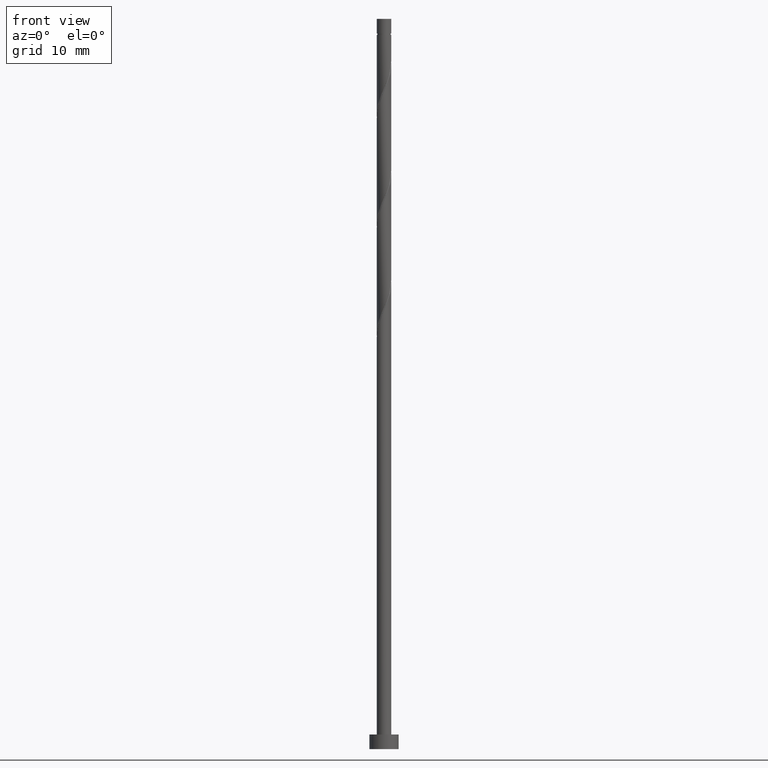
[diagram: clean part render]
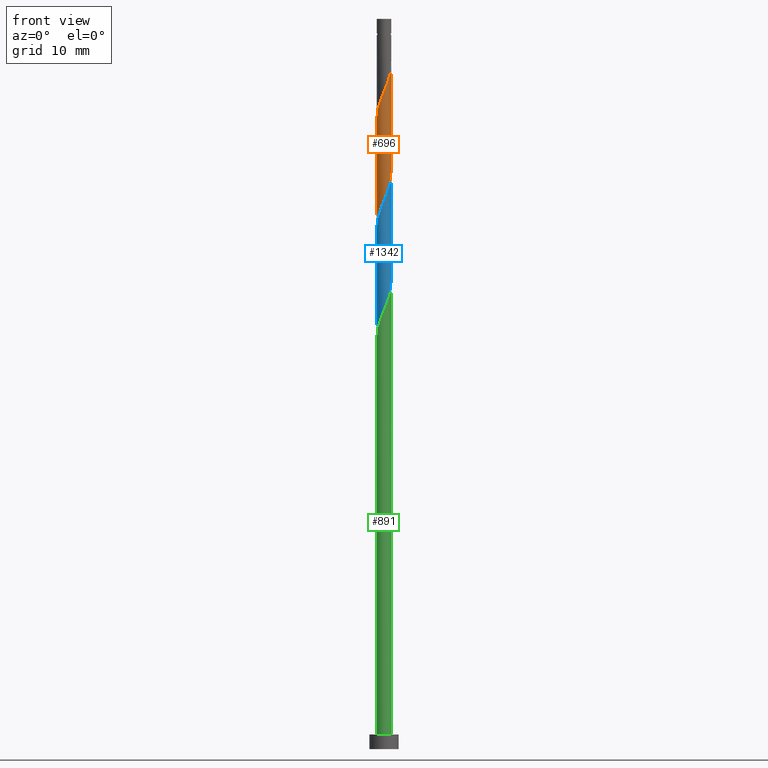
[diagram: same view with three faces highlighted in distinct colors, each labeled with its STEP entity id]
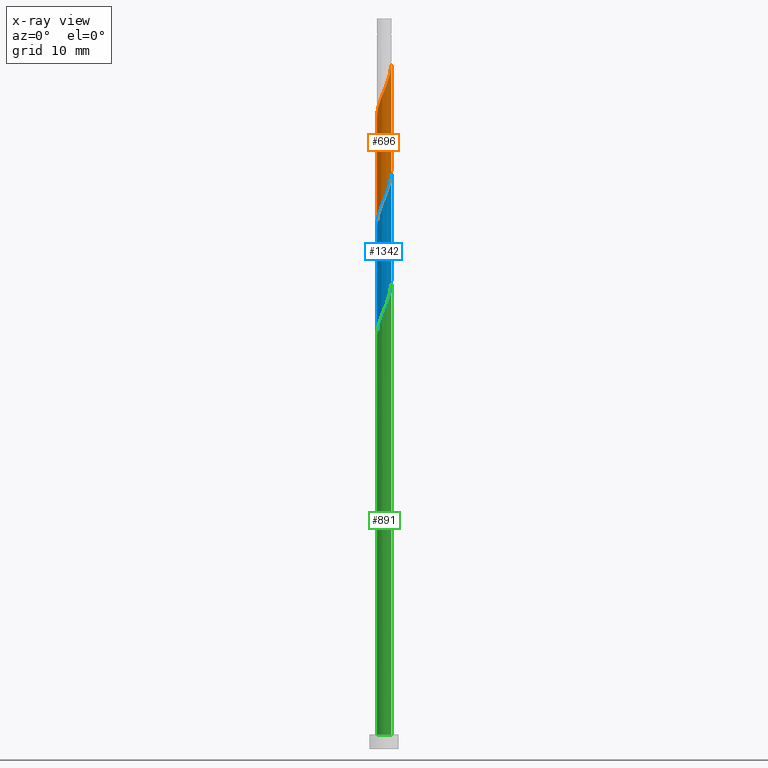
[diagram: x-ray of the same camera — body ghosted, the three highlighted faces saturated]
A machine part, front view with three faces highlighted in distinct colors.
The next image is the same camera in x-ray (body ghosted, the three faces saturated) — at least one of them is partly hidden behind the body in this view.
Their STEP definitions:

[orange] entity #696 — the highlighted cylindrical surface (edge-blend (fillet) strip) has radius 1 mm, axis along (-0, -0, -1).
#40 = CARTESIAN_POINT ( 'NONE',  ( -0.4173462071991567157, -0.9256961420802413132, 89.04999999999999716 ) ) ;
#53 = CARTESIAN_POINT ( 'NONE',  ( -0.09987492177719106690, -0.9949999999999999956, 75.30000000000002558 ) ) ;
#61 = CARTESIAN_POINT ( 'NONE',  ( -1.000000000000000000, -8.581936326203144864E-17, 86.31035135352635734 ) ) ;
#70 = CARTESIAN_POINT ( 'NONE',  ( -1.000000000000000000, -2.603187352281614199E-15, 71.78964864647365118 ) ) ;
#71 = EDGE_CURVE ( 'NONE', #901, #251, #1340, .T. ) ;
#74 = CARTESIAN_POINT ( 'NONE',  ( -0.7160823004724664598, -0.6980158586665924370, 73.63333333333332575 ) ) ;
#97 = CARTESIAN_POINT ( 'NONE',  ( -1.000000000000000000, -2.603187352281614199E-15, 71.78964864647365118 ) ) ;
#101 = LINE ( 'NONE', #738, #1165 ) ;
#163 = EDGE_CURVE ( 'NONE', #623, #705, #1440, .T. ) ;
#168 = CARTESIAN_POINT ( 'NONE',  ( 0.2464583156134441955, -0.9691533927428537254, 76.13333333333332575 ) ) ;
#185 = CARTESIAN_POINT ( 'NONE',  ( 0.8117578158769208629, -0.5839942194600313830, 77.80000000000002558 ) ) ;
#248 = CYLINDRICAL_SURFACE ( 'NONE', #1308, 1.000000000000000000 ) ;
#251 = VERTEX_POINT ( 'NONE', #70 ) ;
#273 = FACE_OUTER_BOUND ( 'NONE', #975, .T. ) ;
#295 = CARTESIAN_POINT ( 'NONE',  ( 0.2753202675821132539, -0.9773893565945339645, 90.71666666666666856 ) ) ;
#301 = CARTESIAN_POINT ( 'NONE',  ( 0.9116327376541116800, -0.4110057805399693898, 92.80000000000001137 ) ) ;
#335 = CARTESIAN_POINT ( 'NONE',  ( -0.8117578158769209740, -0.5839942194600308278, 87.80000000000001137 ) ) ;
#394 = CARTESIAN_POINT ( 'NONE',  ( 0.9147317533455048277, -0.4408594147199561553, 78.21666666666665435 ) ) ;
#436 = CARTESIAN_POINT ( 'NONE',  ( 1.000000000000000222, -4.290968163101563064E-16, 79.28964864647366539 ) ) ;
#482 = CARTESIAN_POINT ( 'NONE',  ( -0.07557042402773206380, -1.012610643405466249, 89.88333333333333997 ) ) ;
#512 = DIRECTION ( 'NONE',  ( -1.000000000000000000, 0.000000000000000000, 0.000000000000000000 ) ) ;
#516 = ORIENTED_EDGE ( 'NONE', *, *, #984, .T. ) ;
#527 = LINE ( 'NONE', #889, #586 ) ;
#532 = CARTESIAN_POINT ( 'NONE',  ( -0.8391613293177733190, -0.5717512286855107595, 73.21666666666664014 ) ) ;
#553 = CARTESIAN_POINT ( 'NONE',  ( -0.9625406160859104610, -0.2711375340762611774, 86.96666666666666856 ) ) ;
#581 = CARTESIAN_POINT ( 'NONE',  ( 1.000000000000000222, -0.03726283816066728455, 93.72138669025336810 ) ) ;
#586 = VECTOR ( 'NONE', #988, 1000.000000000000000 ) ;
#623 = VERTEX_POINT ( 'NONE', #61 ) ;
#645 = CARTESIAN_POINT ( 'NONE',  ( 0.5630650428037468069, -0.8264125831401737399, 76.96666666666666856 ) ) ;
#654 = CARTESIAN_POINT ( 'NONE',  ( -0.9972268124083832896, -0.07442233948093023022, 71.96666666666668277 ) ) ;
#661 = ORIENTED_EDGE ( 'NONE', *, *, #71, .F. ) ;
#696 = ADVANCED_FACE ( 'NONE', ( #273 ), #248, .T. ) ;
#699 = CARTESIAN_POINT ( 'NONE',  ( 0.000000000000000000, 0.000000000000000000, 100.0000000000000000 ) ) ;
#703 = CARTESIAN_POINT ( 'NONE',  ( 0.9972268124083832896, -0.07442233948093021634, 93.63333333333335418 ) ) ;
#705 = VERTEX_POINT ( 'NONE', #1134 ) ;
#706 = CARTESIAN_POINT ( 'NONE',  ( 1.000000000000000222, -4.290968163101563064E-16, 79.28964864647366539 ) ) ;
#738 = CARTESIAN_POINT ( 'NONE',  ( -1.000000000000000000, 0.000000000000000000, 100.0000000000000000 ) ) ;
#753 = CARTESIAN_POINT ( 'NONE',  ( 0.9841041459904503741, -0.2502603323944278535, 93.21666666666666856 ) ) ;
#755 = DIRECTION ( 'NONE',  ( -0.000000000000000000, -0.000000000000000000, -1.000000000000000000 ) ) ;
#866 = CARTESIAN_POINT ( 'NONE',  ( 0.7160823004724661267, -0.6980158586665925480, 91.96666666666669698 ) ) ;
#883 = CARTESIAN_POINT ( 'NONE',  ( -0.2753202675821139200, -0.9773893565945336315, 74.88333333333332575 ) ) ;
#889 = CARTESIAN_POINT ( 'NONE',  ( 1.000000000000000000, 1.224646799147353207E-16, 100.0000000000000000 ) ) ;
#901 = VERTEX_POINT ( 'NONE', #436 ) ;
#975 = EDGE_LOOP ( 'NONE', ( #1400, #1247, #516, #661 ) ) ;
#976 = CARTESIAN_POINT ( 'NONE',  ( -0.5930032716271594895, -0.8242804886476744475, 74.05000000000001137 ) ) ;
#979 = CARTESIAN_POINT ( 'NONE',  ( 0.4341617696046363717, -0.9008349226211040950, 91.13333333333332575 ) ) ;
#984 = EDGE_CURVE ( 'NONE', #623, #251, #101, .T. ) ;
#988 = DIRECTION ( 'NONE',  ( -0.000000000000000000, -0.000000000000000000, -1.000000000000000000 ) ) ;
#989 = CARTESIAN_POINT ( 'NONE',  ( 0.7087838784083367871, -0.7271290242001067217, 77.38333333333332575 ) ) ;
#998 = CARTESIAN_POINT ( 'NONE',  ( -0.9116327376541120131, -0.4110057805399687791, 72.80000000000002558 ) ) ;
#1014 = CARTESIAN_POINT ( 'NONE',  ( -1.000000000000000444, -0.1381563937346758919, 86.64019839831189529 ) ) ;
#1024 = CARTESIAN_POINT ( 'NONE',  ( -0.9147317533455049388, -0.4408594147199554891, 87.38333333333331154 ) ) ;
#1043 = CARTESIAN_POINT ( 'NONE',  ( 1.000000000000000000, 7.866774965686214893E-17, 93.81035135352635734 ) ) ;
#1085 = CARTESIAN_POINT ( 'NONE',  ( 0.5930032716271590454, -0.8242804886476744475, 91.54999999999999716 ) ) ;
#1095 = CARTESIAN_POINT ( 'NONE',  ( 0.4173462071991564382, -0.9256961420802414242, 76.54999999999999716 ) ) ;
#1104 = DIRECTION ( 'NONE',  ( -0.000000000000000000, -0.000000000000000000, -1.000000000000000000 ) ) ;
#1106 = CARTESIAN_POINT ( 'NONE',  ( 0.07557042402773136991, -1.012610643405466471, 75.71666666666666856 ) ) ;
#1128 = CARTESIAN_POINT ( 'NONE',  ( -1.000000000000000000, -8.581936326203144864E-17, 86.31035135352635734 ) ) ;
#1134 = CARTESIAN_POINT ( 'NONE',  ( 1.000000000000000000, 7.866774965686214893E-17, 93.81035135352635734 ) ) ;
#1165 = VECTOR ( 'NONE', #1104, 1000.000000000000000 ) ;
#1166 = CARTESIAN_POINT ( 'NONE',  ( 1.000000000000000888, -0.1381563937346747262, 78.95980160168809903 ) ) ;
#1197 = CARTESIAN_POINT ( 'NONE',  ( 0.09987492177719080322, -0.9949999999999999956, 90.29999999999999716 ) ) ;
#1206 = CARTESIAN_POINT ( 'NONE',  ( -0.2464583156134444175, -0.9691533927428536144, 89.46666666666669698 ) ) ;
#1212 = CARTESIAN_POINT ( 'NONE',  ( 0.9625406160859105720, -0.2711375340762611219, 78.63333333333331154 ) ) ;
#1225 = CARTESIAN_POINT ( 'NONE',  ( -0.4341617696046366492, -0.9008349226211040950, 74.46666666666665435 ) ) ;
#1230 = CARTESIAN_POINT ( 'NONE',  ( -0.9841041459904508182, -0.2502603323944273539, 72.38333333333333997 ) ) ;
#1247 = ORIENTED_EDGE ( 'NONE', *, *, #163, .F. ) ;
#1254 = CARTESIAN_POINT ( 'NONE',  ( -0.7087838784083370092, -0.7271290242001063886, 88.21666666666666856 ) ) ;
#1278 = CARTESIAN_POINT ( 'NONE',  ( -0.5630650428037469180, -0.8264125831401736288, 88.63333333333335418 ) ) ;
#1308 = AXIS2_PLACEMENT_3D ( 'NONE', #699, #755, #512 ) ;
#1326 = CARTESIAN_POINT ( 'NONE',  ( 0.8391613293177730970, -0.5717512286855108705, 92.38333333333331154 ) ) ;
#1340 =( BOUNDED_CURVE ( )  B_SPLINE_CURVE ( 2, ( #706, #1166, #1212, #394, #185, #989, #645, #1095, #168, #1106, #53, #883, #1225, #976, #74, #532, #998, #1230, #654, #1476, #97 ),
 .UNSPECIFIED., .F., .T. ) 
 B_SPLINE_CURVE_WITH_KNOTS ( ( 3, 2, 2, 2, 2, 2, 2, 2, 2, 2, 3 ),
 ( 0.5585262615578963086, 0.5694444444444444198, 0.5833333333333333703, 0.5972222222222222099, 0.6111111111111111605, 0.6250000000000000000, 0.6388888888888888395, 0.6527777777777777901, 0.6666666666666666297, 0.6805555555555555802, 0.6835262615578967527 ),
 .UNSPECIFIED. ) 
 CURVE ( )  GEOMETRIC_REPRESENTATION_ITEM ( )  RATIONAL_B_SPLINE_CURVE ( ( 0.9475153373969255055, 0.9410068908218450767, 0.9523809523809528832, 0.9379121457259129713, 0.9523809523809528832, 0.9379121457259129713, 0.9523809523809528832, 0.9379121457259129713, 0.9523809523809528832, 0.9379121457259129713, 0.9523809523809528832, 0.9379121457259129713, 0.9523809523809528832, 0.9379121457259129713, 0.9523809523809528832, 0.9379121457259129713, 0.9523809523809528832, 0.9379121457259129713, 0.9523809523809528832, 0.9492862072850202226, 0.9475153373969248394 ) ) 
 REPRESENTATION_ITEM ( '' )  );
#1400 = ORIENTED_EDGE ( 'NONE', *, *, #1425, .F. ) ;
#1425 = EDGE_CURVE ( 'NONE', #705, #901, #527, .T. ) ;
#1440 =( BOUNDED_CURVE ( )  B_SPLINE_CURVE ( 2, ( #1128, #1014, #553, #1024, #335, #1254, #1278, #40, #1206, #482, #1197, #295, #979, #1085, #866, #1326, #301, #753, #703, #581, #1043 ),
 .UNSPECIFIED., .F., .T. ) 
 B_SPLINE_CURVE_WITH_KNOTS ( ( 3, 2, 2, 2, 2, 2, 2, 2, 2, 2, 3 ),
 ( 0.5585262615578964196, 0.5694444444444444198, 0.5833333333333332593, 0.5972222222222222099, 0.6111111111111111605, 0.6250000000000000000, 0.6388888888888888395, 0.6527777777777777901, 0.6666666666666667407, 0.6805555555555555802, 0.6835262615578969747 ),
 .UNSPECIFIED. ) 
 CURVE ( )  GEOMETRIC_REPRESENTATION_ITEM ( )  RATIONAL_B_SPLINE_CURVE ( ( 0.9475153373969233961, 0.9410068908218433004, 0.9523809523809509958, 0.9379121457259110839, 0.9523809523809509958, 0.9379121457259110839, 0.9523809523809509958, 0.9379121457259110839, 0.9523809523809509958, 0.9379121457259110839, 0.9523809523809509958, 0.9379121457259110839, 0.9523809523809509958, 0.9379121457259110839, 0.9523809523809509958, 0.9379121457259110839, 0.9523809523809509958, 0.9379121457259110839, 0.9523809523809509958, 0.9492862072850182242, 0.9475153373969227300 ) ) 
 REPRESENTATION_ITEM ( '' )  );
#1476 = CARTESIAN_POINT ( 'NONE',  ( -1.000000000000000444, -0.03726283816067003929, 71.87861330974669727 ) ) ;

[blue] entity #1342 — the highlighted cylindrical surface (edge-blend (fillet) strip) has radius 1 mm, axis along (-0, -0, -1).
#31 = CARTESIAN_POINT ( 'NONE',  ( 0.09987492177719080322, -0.9949999999999999956, 75.30000000000003979 ) ) ;
#32 = ORIENTED_EDGE ( 'NONE', *, *, #1301, .F. ) ;
#88 = VERTEX_POINT ( 'NONE', #462 ) ;
#116 = ORIENTED_EDGE ( 'NONE', *, *, #187, .F. ) ;
#166 = CARTESIAN_POINT ( 'NONE',  ( -0.8117578158769209740, -0.5839942194600308278, 72.80000000000002558 ) ) ;
#172 = CARTESIAN_POINT ( 'NONE',  ( 0.000000000000000000, 0.000000000000000000, 100.0000000000000000 ) ) ;
#187 = EDGE_CURVE ( 'NONE', #88, #1143, #1083, .T. ) ;
#203 = CARTESIAN_POINT ( 'NONE',  ( 0.9147317533455048277, -0.4408594147199561553, 63.21666666666667567 ) ) ;
#211 =( BOUNDED_CURVE ( )  B_SPLINE_CURVE ( 2, ( #1210, #507, #981, #515, #166, #1329, #622, #305, #1218, #733, #31, #1087, #496, #953, #1322, #392, #1408, #845, #1414, #1429, #1299 ),
 .UNSPECIFIED., .F., .T. ) 
 B_SPLINE_CURVE_WITH_KNOTS ( ( 3, 2, 2, 2, 2, 2, 2, 2, 2, 2, 3 ),
 ( 0.3085262615578962531, 0.3194444444444444198, 0.3333333333333333703, 0.3472222222222222099, 0.3611111111111111605, 0.3750000000000000000, 0.3888888888888888395, 0.4027777777777777901, 0.4166666666666666297, 0.4305555555555555802, 0.4335262615578967527 ),
 .UNSPECIFIED. ) 
 CURVE ( )  GEOMETRIC_REPRESENTATION_ITEM ( )  RATIONAL_B_SPLINE_CURVE ( ( 0.9475153373969236181, 0.9410068908218430783, 0.9523809523809509958, 0.9379121457259110839, 0.9523809523809509958, 0.9379121457259110839, 0.9523809523809509958, 0.9379121457259110839, 0.9523809523809509958, 0.9379121457259110839, 0.9523809523809509958, 0.9379121457259110839, 0.9523809523809509958, 0.9379121457259110839, 0.9523809523809509958, 0.9379121457259110839, 0.9523809523809509958, 0.9379121457259110839, 0.9523809523809509958, 0.9492862072850184463, 0.9475153373969230630 ) ) 
 REPRESENTATION_ITEM ( '' )  );
#221 = CARTESIAN_POINT ( 'NONE',  ( 0.07557042402773136991, -1.012610643405466471, 60.71666666666666146 ) ) ;
#237 = CARTESIAN_POINT ( 'NONE',  ( 0.8117578158769208629, -0.5839942194600313830, 62.79999999999999716 ) ) ;
#261 = CARTESIAN_POINT ( 'NONE',  ( 0.9999999999999995559, -0.1381563937346788618, 63.95980160168808482 ) ) ;
#305 = CARTESIAN_POINT ( 'NONE',  ( -0.4173462071991567157, -0.9256961420802413132, 74.05000000000002558 ) ) ;
#333 = CARTESIAN_POINT ( 'NONE',  ( 1.000000000000000000, 1.224646799147353207E-16, 100.0000000000000000 ) ) ;
#348 = CARTESIAN_POINT ( 'NONE',  ( -0.9972268124083832896, -0.07442233948093023022, 56.96666666666666856 ) ) ;
#362 = CARTESIAN_POINT ( 'NONE',  ( 1.000000000000000222, -4.290968163101563064E-16, 64.28964864647365118 ) ) ;
#390 = AXIS2_PLACEMENT_3D ( 'NONE', #172, #1184, #1071 ) ;
#392 = CARTESIAN_POINT ( 'NONE',  ( 0.8391613293177730970, -0.5717512286855108705, 77.38333333333333997 ) ) ;
#422 = CARTESIAN_POINT ( 'NONE',  ( -0.09987492177719106690, -0.9949999999999999956, 60.30000000000000426 ) ) ;
#454 = LINE ( 'NONE', #912, #756 ) ;
#462 = CARTESIAN_POINT ( 'NONE',  ( 1.000000000000000222, -4.290968163101563064E-16, 64.28964864647365118 ) ) ;
#496 = CARTESIAN_POINT ( 'NONE',  ( 0.4341617696046363717, -0.9008349226211040950, 76.13333333333333997 ) ) ;
#507 = CARTESIAN_POINT ( 'NONE',  ( -1.000000000000000888, -0.1381563937346738657, 71.64019839831189529 ) ) ;
#515 = CARTESIAN_POINT ( 'NONE',  ( -0.9147317533455049388, -0.4408594147199554891, 72.38333333333331154 ) ) ;
#541 = CARTESIAN_POINT ( 'NONE',  ( -1.000000000000000222, 1.930935673395703650E-16, 56.78964864647364408 ) ) ;
#549 = CARTESIAN_POINT ( 'NONE',  ( 0.5630650428037468069, -0.8264125831401737399, 61.96666666666666856 ) ) ;
#560 = CARTESIAN_POINT ( 'NONE',  ( -0.7160823004724664598, -0.6980158586665924370, 58.63333333333332575 ) ) ;
#566 = ORIENTED_EDGE ( 'NONE', *, *, #1405, .F. ) ;
#568 = CARTESIAN_POINT ( 'NONE',  ( 0.7087838784083367871, -0.7271290242001067217, 62.38333333333332575 ) ) ;
#608 = CYLINDRICAL_SURFACE ( 'NONE', #390, 1.000000000000000000 ) ;
#615 = CARTESIAN_POINT ( 'NONE',  ( -1.000000000000000000, -8.581936326203144864E-17, 71.31035135352634313 ) ) ;
#622 = CARTESIAN_POINT ( 'NONE',  ( -0.5630650428037469180, -0.8264125831401736288, 73.63333333333332575 ) ) ;
#665 = CARTESIAN_POINT ( 'NONE',  ( 0.4173462071991564382, -0.9256961420802414242, 61.54999999999999716 ) ) ;
#676 = CARTESIAN_POINT ( 'NONE',  ( 1.000000000000000000, 7.866774965686214893E-17, 78.81035135352634313 ) ) ;
#721 = ORIENTED_EDGE ( 'NONE', *, *, #1159, .T. ) ;
#733 = CARTESIAN_POINT ( 'NONE',  ( -0.07557042402773206380, -1.012610643405466249, 74.88333333333333997 ) ) ;
#748 = FACE_OUTER_BOUND ( 'NONE', #908, .T. ) ;
#756 = VECTOR ( 'NONE', #1253, 1000.000000000000000 ) ;
#796 = CARTESIAN_POINT ( 'NONE',  ( -0.5930032716271594895, -0.8242804886476744475, 59.04999999999999005 ) ) ;
#807 = CARTESIAN_POINT ( 'NONE',  ( -1.000000000000000444, -0.03726283816067003929, 56.87861330974668306 ) ) ;
#845 = CARTESIAN_POINT ( 'NONE',  ( 0.9841041459904503741, -0.2502603323944278535, 78.21666666666668277 ) ) ;
#893 = CARTESIAN_POINT ( 'NONE',  ( -0.2753202675821139200, -0.9773893565945336315, 59.88333333333334707 ) ) ;
#908 = EDGE_LOOP ( 'NONE', ( #566, #32, #721, #116 ) ) ;
#912 = CARTESIAN_POINT ( 'NONE',  ( -1.000000000000000000, 0.000000000000000000, 100.0000000000000000 ) ) ;
#915 = CARTESIAN_POINT ( 'NONE',  ( -0.8391613293177733190, -0.5717512286855107595, 58.21666666666667567 ) ) ;
#953 = CARTESIAN_POINT ( 'NONE',  ( 0.5930032716271590454, -0.8242804886476744475, 76.55000000000001137 ) ) ;
#971 = VECTOR ( 'NONE', #1114, 1000.000000000000000 ) ;
#981 = CARTESIAN_POINT ( 'NONE',  ( -0.9625406160859104610, -0.2711375340762611774, 71.96666666666669698 ) ) ;
#1008 = CARTESIAN_POINT ( 'NONE',  ( 0.9625406160859105720, -0.2711375340762611219, 63.63333333333333286 ) ) ;
#1071 = DIRECTION ( 'NONE',  ( -1.000000000000000000, 0.000000000000000000, 0.000000000000000000 ) ) ;
#1083 =( BOUNDED_CURVE ( )  B_SPLINE_CURVE ( 2, ( #362, #261, #1008, #203, #237, #568, #549, #665, #1450, #221, #422, #893, #1257, #796, #560, #915, #1233, #1121, #348, #807, #541 ),
 .UNSPECIFIED., .F., .T. ) 
 B_SPLINE_CURVE_WITH_KNOTS ( ( 3, 2, 2, 2, 2, 2, 2, 2, 2, 2, 3 ),
 ( 0.8085262615578966416, 0.8194444444444444198, 0.8333333333333333703, 0.8472222222222222099, 0.8611111111111111605, 0.8750000000000000000, 0.8888888888888888395, 0.9027777777777777901, 0.9166666666666666297, 0.9305555555555555802, 0.9335262615578967527 ),
 .UNSPECIFIED. ) 
 CURVE ( )  GEOMETRIC_REPRESENTATION_ITEM ( )  RATIONAL_B_SPLINE_CURVE ( ( 0.9475153373969250614, 0.9410068908218454098, 0.9523809523809528832, 0.9379121457259129713, 0.9523809523809528832, 0.9379121457259129713, 0.9523809523809528832, 0.9379121457259129713, 0.9523809523809528832, 0.9379121457259129713, 0.9523809523809528832, 0.9379121457259129713, 0.9523809523809528832, 0.9379121457259129713, 0.9523809523809528832, 0.9379121457259129713, 0.9523809523809528832, 0.9379121457259129713, 0.9523809523809528832, 0.9492862072850202226, 0.9475153373969248394 ) ) 
 REPRESENTATION_ITEM ( '' )  );
#1087 = CARTESIAN_POINT ( 'NONE',  ( 0.2753202675821132539, -0.9773893565945339645, 75.71666666666664014 ) ) ;
#1114 = DIRECTION ( 'NONE',  ( -0.000000000000000000, -0.000000000000000000, -1.000000000000000000 ) ) ;
#1121 = CARTESIAN_POINT ( 'NONE',  ( -0.9841041459904508182, -0.2502603323944273539, 57.38333333333332575 ) ) ;
#1141 = CARTESIAN_POINT ( 'NONE',  ( -1.000000000000000222, 1.930935673395703404E-16, 56.78964864647364408 ) ) ;
#1143 = VERTEX_POINT ( 'NONE', #1141 ) ;
#1159 = EDGE_CURVE ( 'NONE', #1362, #1143, #454, .T. ) ;
#1164 = VERTEX_POINT ( 'NONE', #676 ) ;
#1184 = DIRECTION ( 'NONE',  ( -0.000000000000000000, -0.000000000000000000, -1.000000000000000000 ) ) ;
#1210 = CARTESIAN_POINT ( 'NONE',  ( -1.000000000000000000, -8.581936326203146096E-17, 71.31035135352634313 ) ) ;
#1218 = CARTESIAN_POINT ( 'NONE',  ( -0.2464583156134444175, -0.9691533927428536144, 74.46666666666666856 ) ) ;
#1233 = CARTESIAN_POINT ( 'NONE',  ( -0.9116327376541120131, -0.4110057805399687791, 57.80000000000000426 ) ) ;
#1253 = DIRECTION ( 'NONE',  ( -0.000000000000000000, -0.000000000000000000, -1.000000000000000000 ) ) ;
#1257 = CARTESIAN_POINT ( 'NONE',  ( -0.4341617696046366492, -0.9008349226211040950, 59.46666666666667567 ) ) ;
#1299 = CARTESIAN_POINT ( 'NONE',  ( 1.000000000000000000, 7.866774965686214893E-17, 78.81035135352634313 ) ) ;
#1301 = EDGE_CURVE ( 'NONE', #1362, #1164, #211, .T. ) ;
#1322 = CARTESIAN_POINT ( 'NONE',  ( 0.7160823004724661267, -0.6980158586665925480, 76.96666666666669698 ) ) ;
#1329 = CARTESIAN_POINT ( 'NONE',  ( -0.7087838784083370092, -0.7271290242001063886, 73.21666666666666856 ) ) ;
#1342 = ADVANCED_FACE ( 'NONE', ( #748 ), #608, .T. ) ;
#1362 = VERTEX_POINT ( 'NONE', #615 ) ;
#1405 = EDGE_CURVE ( 'NONE', #1164, #88, #1461, .T. ) ;
#1408 = CARTESIAN_POINT ( 'NONE',  ( 0.9116327376541116800, -0.4110057805399693898, 77.80000000000001137 ) ) ;
#1414 = CARTESIAN_POINT ( 'NONE',  ( 0.9972268124083832896, -0.07442233948093021634, 78.63333333333332575 ) ) ;
#1429 = CARTESIAN_POINT ( 'NONE',  ( 0.9999999999999997780, -0.03726283816067007398, 78.72138669025329705 ) ) ;
#1450 = CARTESIAN_POINT ( 'NONE',  ( 0.2464583156134441955, -0.9691533927428537254, 61.13333333333333997 ) ) ;
#1461 = LINE ( 'NONE', #333, #971 ) ;

[green] entity #891 — the highlighted cylindrical surface (edge-blend (fillet) strip) has radius 1 mm, axis along (-0, -0, -1).
#17 = CARTESIAN_POINT ( 'NONE',  ( 0.9116327376541116800, -0.4110057805399693898, 62.79999999999999716 ) ) ;
#23 = CARTESIAN_POINT ( 'NONE',  ( 0.4341617696046363717, -0.9008349226211040950, 61.13333333333334707 ) ) ;
#52 = CARTESIAN_POINT ( 'NONE',  ( -0.9625406160859104610, -0.2711375340762611774, 56.96666666666668277 ) ) ;
#58 = CARTESIAN_POINT ( 'NONE',  ( 0.2753202675821132539, -0.9773893565945339645, 60.71666666666666856 ) ) ;
#62 = CARTESIAN_POINT ( 'NONE',  ( -0.2464583156134444175, -0.9691533927428536144, 59.46666666666667567 ) ) ;
#78 = DIRECTION ( 'NONE',  ( -0.000000000000000000, -0.000000000000000000, -1.000000000000000000 ) ) ;
#83 = FACE_OUTER_BOUND ( 'NONE', #220, .T. ) ;
#95 = LINE ( 'NONE', #826, #254 ) ;
#102 = CIRCLE ( 'NONE', #871, 1.000000000000000000 ) ;
#164 = CARTESIAN_POINT ( 'NONE',  ( 1.000000000000000000, 7.866774965686214893E-17, 63.81035135352636445 ) ) ;
#177 = DIRECTION ( 'NONE',  ( 1.000000000000000000, 0.000000000000000000, 0.000000000000000000 ) ) ;
#184 = CARTESIAN_POINT ( 'NONE',  ( 0.000000000000000000, 0.000000000000000000, 100.0000000000000000 ) ) ;
#193 = CARTESIAN_POINT ( 'NONE',  ( -0.07557042402773206380, -1.012610643405466249, 59.88333333333335418 ) ) ;
#196 = CARTESIAN_POINT ( 'NONE',  ( -1.000000000000000000, 0.000000000000000000, 100.0000000000000000 ) ) ;
#220 = EDGE_LOOP ( 'NONE', ( #484, #283, #489, #591 ) ) ;
#254 = VECTOR ( 'NONE', #1160, 1000.000000000000000 ) ;
#276 = VERTEX_POINT ( 'NONE', #164 ) ;
#283 = ORIENTED_EDGE ( 'NONE', *, *, #604, .F. ) ;
#298 = CARTESIAN_POINT ( 'NONE',  ( -0.8117578158769209740, -0.5839942194600308278, 57.80000000000000426 ) ) ;
#330 = VERTEX_POINT ( 'NONE', #1123 ) ;
#339 = VERTEX_POINT ( 'NONE', #543 ) ;
#340 = DIRECTION ( 'NONE',  ( -1.000000000000000000, 0.000000000000000000, 0.000000000000000000 ) ) ;
#365 = CARTESIAN_POINT ( 'NONE',  ( 0.5930032716271590454, -0.8242804886476744475, 61.55000000000001137 ) ) ;
#407 = CYLINDRICAL_SURFACE ( 'NONE', #1401, 1.000000000000000000 ) ;
#411 = EDGE_CURVE ( 'NONE', #276, #330, #95, .T. ) ;
#475 = CARTESIAN_POINT ( 'NONE',  ( 0.8391613293177730970, -0.5717512286855108705, 62.38333333333333997 ) ) ;
#484 = ORIENTED_EDGE ( 'NONE', *, *, #411, .F. ) ;
#489 = ORIENTED_EDGE ( 'NONE', *, *, #739, .T. ) ;
#543 = CARTESIAN_POINT ( 'NONE',  ( -0.9999999999999997780, -8.453207281310098825E-15, 56.31035135352637155 ) ) ;
#557 = EDGE_CURVE ( 'NONE', #1389, #330, #102, .T. ) ;
#591 = ORIENTED_EDGE ( 'NONE', *, *, #557, .T. ) ;
#604 = EDGE_CURVE ( 'NONE', #339, #276, #938, .T. ) ;
#714 = CARTESIAN_POINT ( 'NONE',  ( 0.7160823004724661267, -0.6980158586665925480, 61.96666666666666856 ) ) ;
#739 = EDGE_CURVE ( 'NONE', #339, #1389, #1344, .T. ) ;
#750 = CARTESIAN_POINT ( 'NONE',  ( -0.7087838784083370092, -0.7271290242001063886, 58.21666666666666856 ) ) ;
#759 = CARTESIAN_POINT ( 'NONE',  ( -0.9999999999999997780, -8.453207281310098825E-15, 56.31035135352637155 ) ) ;
#765 = CARTESIAN_POINT ( 'NONE',  ( -0.5630650428037469180, -0.8264125831401736288, 58.63333333333333286 ) ) ;
#778 = VECTOR ( 'NONE', #1391, 1000.000000000000000 ) ;
#804 = CARTESIAN_POINT ( 'NONE',  ( 0.9841041459904503741, -0.2502603323944278535, 63.21666666666666856 ) ) ;
#826 = CARTESIAN_POINT ( 'NONE',  ( 1.000000000000000000, 1.224646799147353207E-16, 100.0000000000000000 ) ) ;
#863 = CARTESIAN_POINT ( 'NONE',  ( -0.9147317533455049388, -0.4408594147199554891, 57.38333333333333997 ) ) ;
#871 = AXIS2_PLACEMENT_3D ( 'NONE', #1215, #903, #177 ) ;
#891 = ADVANCED_FACE ( 'NONE', ( #83 ), #407, .T. ) ;
#903 = DIRECTION ( 'NONE',  ( 0.000000000000000000, 0.000000000000000000, 1.000000000000000000 ) ) ;
#938 =( BOUNDED_CURVE ( )  B_SPLINE_CURVE ( 2, ( #759, #1105, #52, #863, #298, #750, #765, #1211, #62, #193, #1220, #58, #23, #365, #714, #475, #17, #804, #1381, #1416, #1430 ),
 .UNSPECIFIED., .F., .T. ) 
 B_SPLINE_CURVE_WITH_KNOTS ( ( 3, 2, 2, 2, 2, 2, 2, 2, 2, 2, 3 ),
 ( 0.05852626155789682205, 0.06944444444444441977, 0.08333333333333337034, 0.09722222222222220989, 0.1111111111111111605, 0.1250000000000000000, 0.1388888888888888395, 0.1527777777777777901, 0.1666666666666666297, 0.1805555555555555802, 0.1835262615578969192 ),
 .UNSPECIFIED. ) 
 CURVE ( )  GEOMETRIC_REPRESENTATION_ITEM ( )  RATIONAL_B_SPLINE_CURVE ( ( 0.9475153373969229520, 0.9410068908218436334, 0.9523809523809509958, 0.9379121457259110839, 0.9523809523809509958, 0.9379121457259110839, 0.9523809523809509958, 0.9379121457259110839, 0.9523809523809509958, 0.9379121457259110839, 0.9523809523809509958, 0.9379121457259110839, 0.9523809523809509958, 0.9379121457259110839, 0.9523809523809509958, 0.9379121457259110839, 0.9523809523809509958, 0.9379121457259110839, 0.9523809523809509958, 0.9492862072850182242, 0.9475153373969227300 ) ) 
 REPRESENTATION_ITEM ( '' )  );
#1105 = CARTESIAN_POINT ( 'NONE',  ( -0.9999999999999988898, -0.1381563937346808602, 56.64019839831190950 ) ) ;
#1123 = CARTESIAN_POINT ( 'NONE',  ( 1.000000000000000000, 1.224646799147353207E-16, 2.000000000000000000 ) ) ;
#1160 = DIRECTION ( 'NONE',  ( -0.000000000000000000, -0.000000000000000000, -1.000000000000000000 ) ) ;
#1211 = CARTESIAN_POINT ( 'NONE',  ( -0.4173462071991567157, -0.9256961420802413132, 59.05000000000000426 ) ) ;
#1215 = CARTESIAN_POINT ( 'NONE',  ( 0.000000000000000000, 0.000000000000000000, 2.000000000000000000 ) ) ;
#1220 = CARTESIAN_POINT ( 'NONE',  ( 0.09987492177719080322, -0.9949999999999999956, 60.30000000000000426 ) ) ;
#1245 = CARTESIAN_POINT ( 'NONE',  ( -1.000000000000000000, 0.000000000000000000, 2.000000000000000000 ) ) ;
#1344 = LINE ( 'NONE', #196, #778 ) ;
#1381 = CARTESIAN_POINT ( 'NONE',  ( 0.9972268124083832896, -0.07442233948093021634, 63.63333333333334707 ) ) ;
#1389 = VERTEX_POINT ( 'NONE', #1245 ) ;
#1391 = DIRECTION ( 'NONE',  ( -0.000000000000000000, -0.000000000000000000, -1.000000000000000000 ) ) ;
#1401 = AXIS2_PLACEMENT_3D ( 'NONE', #184, #78, #340 ) ;
#1416 = CARTESIAN_POINT ( 'NONE',  ( 1.000000000000000444, -0.03726283816066764537, 63.72138669025336100 ) ) ;
#1430 = CARTESIAN_POINT ( 'NONE',  ( 1.000000000000000000, 7.866774965686214893E-17, 63.81035135352636445 ) ) ;